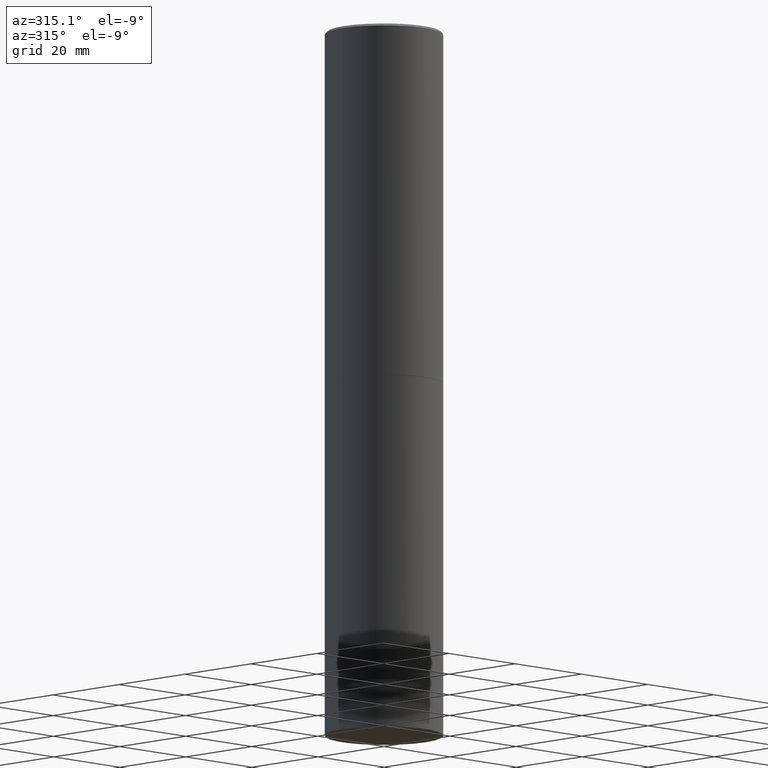
[diagram: clean part render]
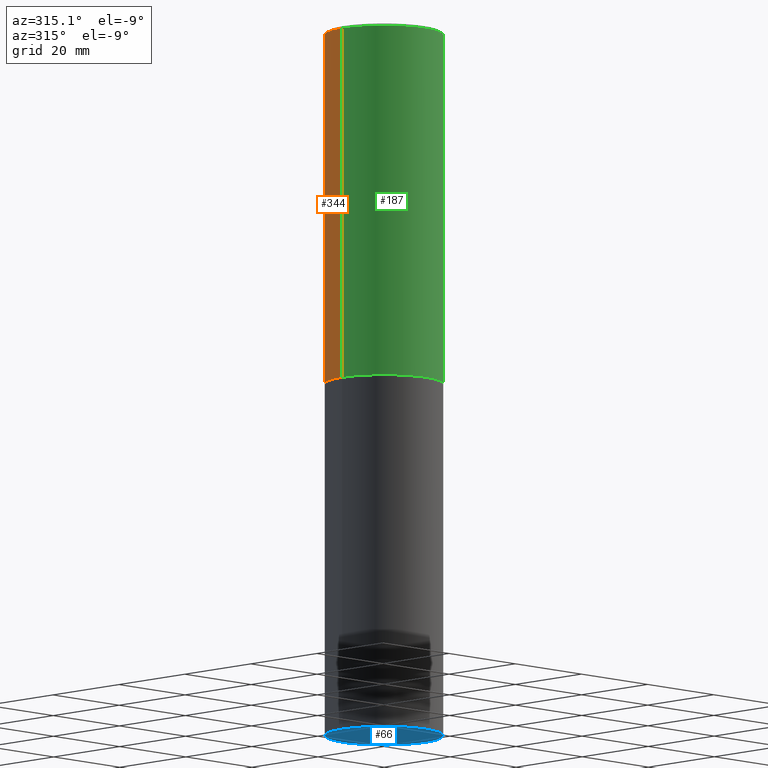
[diagram: same view with three faces highlighted in distinct colors, each labeled with its STEP entity id]
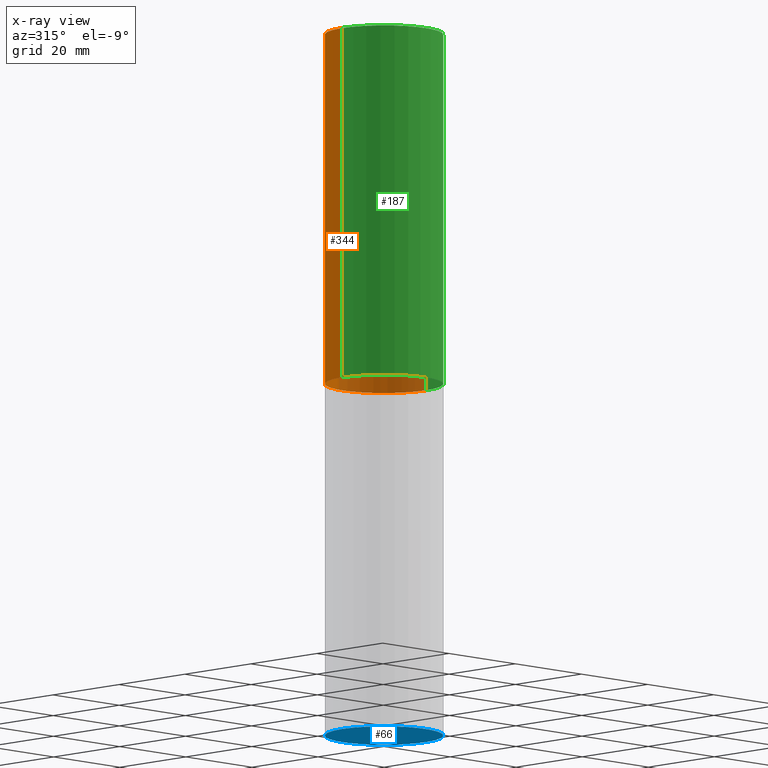
[diagram: x-ray of the same camera — body ghosted, the three highlighted faces saturated]
A machine part, auxiliary view with three faces highlighted in distinct colors.
The next image is the same camera in x-ray (body ghosted, the three faces saturated) — at least one of them is partly hidden behind the body in this view.
Their STEP definitions:

[orange] entity #344 — the highlighted cylindrical surface (partial cylindrical patch) has radius 12.7 mm, axis along (-0, 0, 1).
#3 = ORIENTED_EDGE ( 'NONE', *, *, #300, .T. ) ;
#4 = VECTOR ( 'NONE', #122, 39.37007874015748143 ) ;
#6 = CARTESIAN_POINT ( 'NONE',  ( -0.5000000000000000000, -1.717677402183225026E-15, -2.999000000000000554 ) ) ;
#9 = CARTESIAN_POINT ( 'NONE',  ( 7.333960949749226429E-29, -1.047095253519059492E-14, -2.999000000000000554 ) ) ;
#13 = EDGE_CURVE ( 'NONE', #106, #57, #53, .T. ) ;
#24 = EDGE_LOOP ( 'NONE', ( #3, #48, #229, #282 ) ) ;
#37 = DIRECTION ( 'NONE',  ( 1.000000000000000000, -6.982962677686266711E-15, 0.000000000000000000 ) ) ;
#48 = ORIENTED_EDGE ( 'NONE', *, *, #13, .T. ) ;
#50 = EDGE_CURVE ( 'NONE', #298, #57, #63, .T. ) ;
#53 = LINE ( 'NONE', #58, #139 ) ;
#57 = VERTEX_POINT ( 'NONE', #254 ) ;
#58 = CARTESIAN_POINT ( 'NONE',  ( -0.4999999999999997780, 3.552713678800499352E-15, -2.459467545127452050E-29 ) ) ;
#63 = CIRCLE ( 'NONE', #182, 0.4999999999999996114 ) ;
#76 = DIRECTION ( 'NONE',  ( 1.000000000000000000, -6.982962677686266711E-15, 4.876176775795935793E-29 ) ) ;
#105 = EDGE_CURVE ( 'NONE', #225, #298, #258, .T. ) ;
#106 = VERTEX_POINT ( 'NONE', #6 ) ;
#115 = DIRECTION ( 'NONE',  ( 1.000000000000000000, -6.982962677686266711E-15, 0.000000000000000000 ) ) ;
#122 = DIRECTION ( 'NONE',  ( -2.445468806185136877E-29, 3.491481338843145188E-15, 1.000000000000000000 ) ) ;
#137 = AXIS2_PLACEMENT_3D ( 'NONE', #197, #243, #76 ) ;
#139 = VECTOR ( 'NONE', #231, 39.37007874015748143 ) ;
#172 = CIRCLE ( 'NONE', #270, 0.5000000000000000000 ) ;
#173 = DIRECTION ( 'NONE',  ( -2.445468806185136597E-29, 3.491481338843145583E-15, 1.000000000000000000 ) ) ;
#182 = AXIS2_PLACEMENT_3D ( 'NONE', #204, #173, #115 ) ;
#197 = CARTESIAN_POINT ( 'NONE',  ( 0.000000000000000000, 0.000000000000000000, 0.000000000000000000 ) ) ;
#204 = CARTESIAN_POINT ( 'NONE',  ( 4.890937612370299433E-31, -6.982962677686328587E-17, -0.02000000000000010797 ) ) ;
#225 = VERTEX_POINT ( 'NONE', #316 ) ;
#229 = ORIENTED_EDGE ( 'NONE', *, *, #50, .F. ) ;
#231 = DIRECTION ( 'NONE',  ( -2.445468806185136877E-29, 3.491481338843145188E-15, 1.000000000000000000 ) ) ;
#233 = CARTESIAN_POINT ( 'NONE',  ( 0.4999999999999997780, -3.491481338843131778E-15, 2.438088387897966775E-29 ) ) ;
#242 = CYLINDRICAL_SURFACE ( 'NONE', #137, 0.4999999999999997780 ) ;
#243 = DIRECTION ( 'NONE',  ( -2.445468806185136597E-29, 3.491481338843145583E-15, 1.000000000000000000 ) ) ;
#254 = CARTESIAN_POINT ( 'NONE',  ( -0.4999999999999996114, 3.421651712066267296E-15, -0.02000000000000010797 ) ) ;
#258 = LINE ( 'NONE', #233, #4 ) ;
#265 = CARTESIAN_POINT ( 'NONE',  ( 0.4999999999999996114, -3.500078625662626318E-15, -0.02000000000000010797 ) ) ;
#270 = AXIS2_PLACEMENT_3D ( 'NONE', #9, #292, #37 ) ;
#274 = FACE_OUTER_BOUND ( 'NONE', #24, .T. ) ;
#282 = ORIENTED_EDGE ( 'NONE', *, *, #105, .F. ) ;
#292 = DIRECTION ( 'NONE',  ( -2.445468806185136597E-29, 3.491481338843145583E-15, 1.000000000000000000 ) ) ;
#298 = VERTEX_POINT ( 'NONE', #265 ) ;
#300 = EDGE_CURVE ( 'NONE', #225, #106, #172, .T. ) ;
#316 = CARTESIAN_POINT ( 'NONE',  ( 0.5000000000000000000, -1.396243387403372828E-14, -2.999000000000000554 ) ) ;
#344 = ADVANCED_FACE ( 'NONE', ( #274 ), #242, .T. ) ;

[blue] entity #66 — the highlighted planar face has unit normal (0, -0, -1).
#26 = ORIENTED_EDGE ( 'NONE', *, *, #353, .F. ) ;
#29 = CARTESIAN_POINT ( 'NONE',  ( -0.5000000000000000000, -1.215895234599365439E-14, -6.000000000000000888 ) ) ;
#30 = DIRECTION ( 'NONE',  ( -2.445468806185136597E-29, 3.491481338843145583E-15, 1.000000000000000000 ) ) ;
#31 = DIRECTION ( 'NONE',  ( 1.000000000000000000, -6.982962677686262766E-15, 0.000000000000000000 ) ) ;
#52 = VERTEX_POINT ( 'NONE', #29 ) ;
#54 = ORIENTED_EDGE ( 'NONE', *, *, #73, .F. ) ;
#61 = CIRCLE ( 'NONE', #116, 0.5000000000000000000 ) ;
#66 = ADVANCED_FACE ( 'NONE', ( #176 ), #148, .T. ) ;
#73 = EDGE_CURVE ( 'NONE', #52, #199, #241, .T. ) ;
#82 = AXIS2_PLACEMENT_3D ( 'NONE', #87, #30, #31 ) ;
#87 = CARTESIAN_POINT ( 'NONE',  ( 1.467281283711081958E-28, -2.094888803305887271E-14, -6.000000000000000888 ) ) ;
#90 = CARTESIAN_POINT ( 'NONE',  ( 3.491481338843279295E-15, 0.4999999999999790168, -6.000000000000002665 ) ) ;
#116 = AXIS2_PLACEMENT_3D ( 'NONE', #273, #358, #140 ) ;
#140 = DIRECTION ( 'NONE',  ( 1.000000000000000000, -6.982962677686262766E-15, 0.000000000000000000 ) ) ;
#148 = PLANE ( 'NONE',  #317 ) ;
#157 = CARTESIAN_POINT ( 'NONE',  ( 0.5000000000000000000, -2.444036937190200606E-14, -6.000000000000000888 ) ) ;
#176 = FACE_OUTER_BOUND ( 'NONE', #246, .T. ) ;
#199 = VERTEX_POINT ( 'NONE', #157 ) ;
#241 = CIRCLE ( 'NONE', #82, 0.5000000000000000000 ) ;
#246 = EDGE_LOOP ( 'NONE', ( #26, #54 ) ) ;
#256 = DIRECTION ( 'NONE',  ( 2.438088387897960049E-29, -3.491481338843145188E-15, -1.000000000000000000 ) ) ;
#273 = CARTESIAN_POINT ( 'NONE',  ( 1.467281283711081958E-28, -2.094888803305887271E-14, -6.000000000000000888 ) ) ;
#284 = DIRECTION ( 'NONE',  ( -1.000000000000000000, 6.982962677686265922E-15, -4.876176775795935793E-29 ) ) ;
#317 = AXIS2_PLACEMENT_3D ( 'NONE', #90, #256, #284 ) ;
#353 = EDGE_CURVE ( 'NONE', #199, #52, #61, .T. ) ;
#358 = DIRECTION ( 'NONE',  ( -2.445468806185136597E-29, 3.491481338843145583E-15, 1.000000000000000000 ) ) ;

[green] entity #187 — the highlighted cylindrical surface (partial cylindrical patch) has radius 12.7 mm, axis along (-0, 0, 1).
#4 = VECTOR ( 'NONE', #122, 39.37007874015748143 ) ;
#6 = CARTESIAN_POINT ( 'NONE',  ( -0.5000000000000000000, -1.717677402183225026E-15, -2.999000000000000554 ) ) ;
#11 = CARTESIAN_POINT ( 'NONE',  ( 7.333960949749226429E-29, -1.047095253519059492E-14, -2.999000000000000554 ) ) ;
#13 = EDGE_CURVE ( 'NONE', #106, #57, #53, .T. ) ;
#16 = CARTESIAN_POINT ( 'NONE',  ( 4.890937612370299433E-31, -6.982962677686328587E-17, -0.02000000000000010797 ) ) ;
#18 = DIRECTION ( 'NONE',  ( -2.445468806185136597E-29, 3.491481338843145583E-15, 1.000000000000000000 ) ) ;
#46 = ORIENTED_EDGE ( 'NONE', *, *, #105, .T. ) ;
#53 = LINE ( 'NONE', #58, #139 ) ;
#57 = VERTEX_POINT ( 'NONE', #254 ) ;
#58 = CARTESIAN_POINT ( 'NONE',  ( -0.4999999999999997780, 3.552713678800499352E-15, -2.459467545127452050E-29 ) ) ;
#75 = ORIENTED_EDGE ( 'NONE', *, *, #13, .F. ) ;
#86 = AXIS2_PLACEMENT_3D ( 'NONE', #11, #18, #167 ) ;
#105 = EDGE_CURVE ( 'NONE', #225, #298, #258, .T. ) ;
#106 = VERTEX_POINT ( 'NONE', #6 ) ;
#122 = DIRECTION ( 'NONE',  ( -2.445468806185136877E-29, 3.491481338843145188E-15, 1.000000000000000000 ) ) ;
#130 = CARTESIAN_POINT ( 'NONE',  ( 0.000000000000000000, 0.000000000000000000, 0.000000000000000000 ) ) ;
#135 = EDGE_LOOP ( 'NONE', ( #75, #179, #46, #365 ) ) ;
#139 = VECTOR ( 'NONE', #231, 39.37007874015748143 ) ;
#162 = AXIS2_PLACEMENT_3D ( 'NONE', #16, #226, #192 ) ;
#167 = DIRECTION ( 'NONE',  ( 1.000000000000000000, -6.982962677686266711E-15, 0.000000000000000000 ) ) ;
#179 = ORIENTED_EDGE ( 'NONE', *, *, #306, .T. ) ;
#187 = ADVANCED_FACE ( 'NONE', ( #269 ), #213, .T. ) ;
#192 = DIRECTION ( 'NONE',  ( 1.000000000000000000, -6.982962677686266711E-15, 0.000000000000000000 ) ) ;
#200 = AXIS2_PLACEMENT_3D ( 'NONE', #130, #262, #294 ) ;
#213 = CYLINDRICAL_SURFACE ( 'NONE', #200, 0.4999999999999997780 ) ;
#225 = VERTEX_POINT ( 'NONE', #316 ) ;
#226 = DIRECTION ( 'NONE',  ( -2.445468806185136597E-29, 3.491481338843145583E-15, 1.000000000000000000 ) ) ;
#231 = DIRECTION ( 'NONE',  ( -2.445468806185136877E-29, 3.491481338843145188E-15, 1.000000000000000000 ) ) ;
#232 = CIRCLE ( 'NONE', #162, 0.4999999999999996114 ) ;
#233 = CARTESIAN_POINT ( 'NONE',  ( 0.4999999999999997780, -3.491481338843131778E-15, 2.438088387897966775E-29 ) ) ;
#254 = CARTESIAN_POINT ( 'NONE',  ( -0.4999999999999996114, 3.421651712066267296E-15, -0.02000000000000010797 ) ) ;
#258 = LINE ( 'NONE', #233, #4 ) ;
#262 = DIRECTION ( 'NONE',  ( -2.445468806185136597E-29, 3.491481338843145583E-15, 1.000000000000000000 ) ) ;
#265 = CARTESIAN_POINT ( 'NONE',  ( 0.4999999999999996114, -3.500078625662626318E-15, -0.02000000000000010797 ) ) ;
#269 = FACE_OUTER_BOUND ( 'NONE', #135, .T. ) ;
#294 = DIRECTION ( 'NONE',  ( 1.000000000000000000, -6.982962677686266711E-15, 4.876176775795935793E-29 ) ) ;
#298 = VERTEX_POINT ( 'NONE', #265 ) ;
#306 = EDGE_CURVE ( 'NONE', #106, #225, #342, .T. ) ;
#316 = CARTESIAN_POINT ( 'NONE',  ( 0.5000000000000000000, -1.396243387403372828E-14, -2.999000000000000554 ) ) ;
#342 = CIRCLE ( 'NONE', #86, 0.5000000000000000000 ) ;
#360 = EDGE_CURVE ( 'NONE', #57, #298, #232, .T. ) ;
#365 = ORIENTED_EDGE ( 'NONE', *, *, #360, .F. ) ;